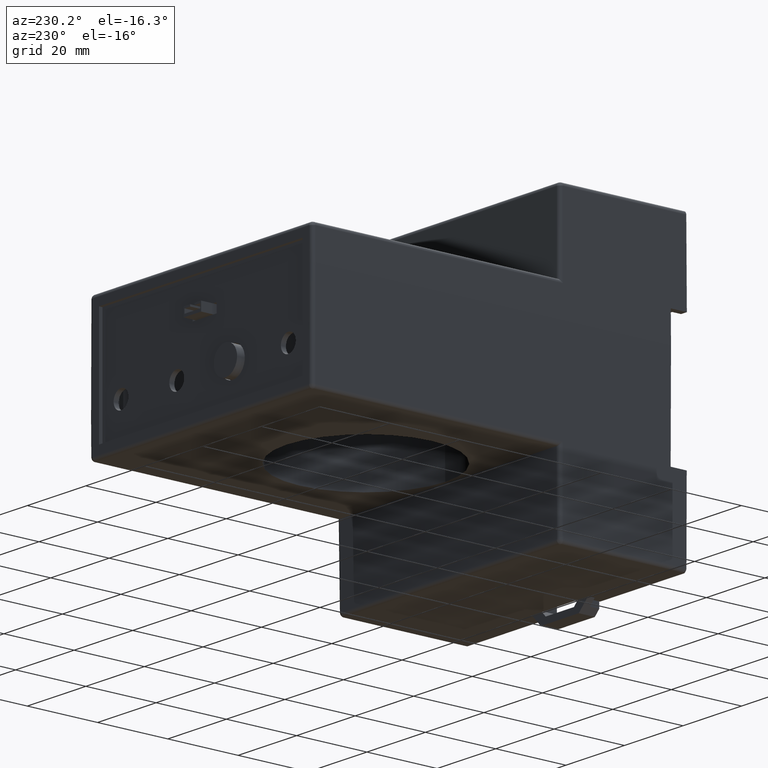
[diagram: clean part render]
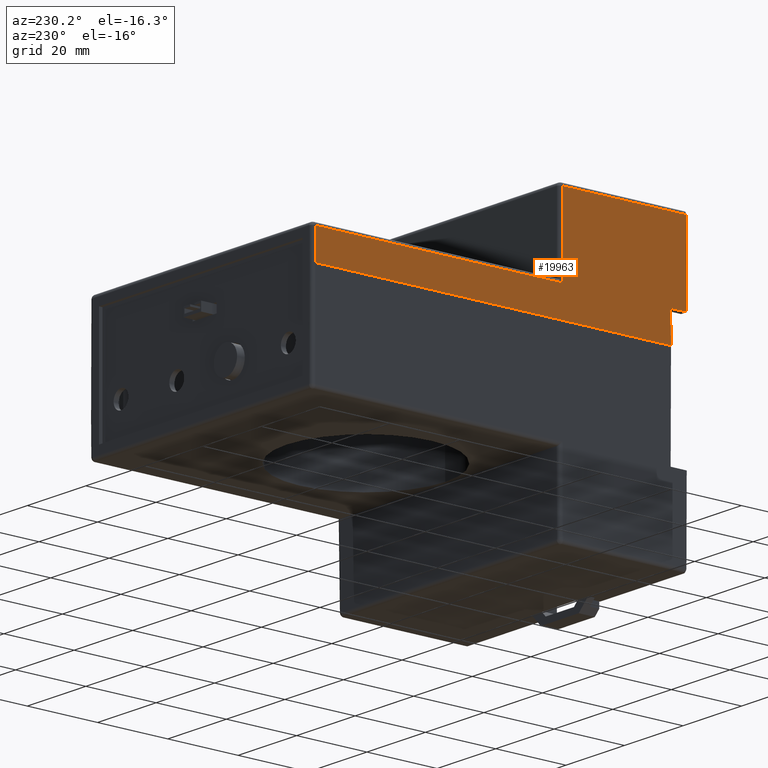
[diagram: same view with one face highlighted and labeled with its STEP entity id]
A machine part, auxiliary view. The second image highlights one B-rep face of the part: STEP entity #19963.
In plain terms, the highlighted planar face has unit normal (1, 0, -0.0087).
Its self-contained STEP definition (entity closure, byte-faithful):
#240 = CARTESIAN_POINT ( 'NONE',  ( -1.495737851716248068, -1.607657660740364092, -0.03899640286111709375 ) ) ;
#415 = ORIENTED_EDGE ( 'NONE', *, *, #27306, .T. ) ;
#868 = B_SPLINE_CURVE_WITH_KNOTS ( 'NONE', 3,
 ( #32019, #18543, #1821, #1662 ),
 .UNSPECIFIED., .F., .F.,
 ( 4, 4 ),
 ( 0.000000000000000000, 1.000000000000000000 ),
 .UNSPECIFIED. ) ;
#1662 = CARTESIAN_POINT ( 'NONE',  ( -1.495745135437334561, 1.164336080886734237, -0.03902644682732960696 ) ) ;
#1821 = CARTESIAN_POINT ( 'NONE',  ( -1.496730293284150859, 1.164348110933815406, -0.1510175401634931969 ) ) ;
#2251 = VERTEX_POINT ( 'NONE', #20005 ) ;
#2555 = VECTOR ( 'NONE', #25016, 39.37007874015748854 ) ;
#3359 = EDGE_CURVE ( 'NONE', #12654, #32877, #11430, .T. ) ;
#4927 = VECTOR ( 'NONE', #7934, 39.37007874015748143 ) ;
#5079 = CARTESIAN_POINT ( 'NONE',  ( -1.488101301464318960, -2.996293787826625810, 0.8359734850000097861 ) ) ;
#7218 = DIRECTION ( 'NONE',  ( 0.000000000000000000, -1.000000000000000000, 0.000000000000000000 ) ) ;
#7296 = CARTESIAN_POINT ( 'NONE',  ( -1.495745806622413410, -2.996293787826625810, -0.04000000066959763512 ) ) ;
#7934 = DIRECTION ( 'NONE',  ( 0.000000000000000000, 1.000000000000000000, 0.000000000000000000 ) ) ;
#8161 = EDGE_CURVE ( 'NONE', #34552, #30690, #34583, .T. ) ;
#8861 = CARTESIAN_POINT ( 'NONE',  ( -1.488101301464318960, -2.816293787826626094, 0.8359734850000097861 ) ) ;
#11201 = CARTESIAN_POINT ( 'NONE',  ( -1.493385304464319052, -2.996293787826625810, 0.2304867425000086956 ) ) ;
#11430 = B_SPLINE_CURVE_WITH_KNOTS ( 'NONE', 3,
 ( #25367, #27845, #20207, #33354 ),
 .UNSPECIFIED., .F., .F.,
 ( 4, 4 ),
 ( 0.000000000000000000, 1.000000000000000000 ),
 .UNSPECIFIED. ) ;
#11434 = CARTESIAN_POINT ( 'NONE',  ( -1.490648173744252958, -1.612767112615052234, 0.5443168675658545119 ) ) ;
#12654 = VERTEX_POINT ( 'NONE', #14778 ) ;
#13249 = CARTESIAN_POINT ( 'NONE',  ( -1.488101301464318960, -0.9034788148266260643, 0.8359734850000097861 ) ) ;
#13435 = EDGE_CURVE ( 'NONE', #2251, #34980, #35122, .T. ) ;
#13570 = ORIENTED_EDGE ( 'NONE', *, *, #17709, .F. ) ;
#14666 = CARTESIAN_POINT ( 'NONE',  ( -1.488101301462563031, -2.996293787826625810, 0.8359734852001161620 ) ) ;
#14778 = CARTESIAN_POINT ( 'NONE',  ( -1.495745135437334561, 1.164336080886734237, -0.03902644682732960696 ) ) ;
#15377 = CARTESIAN_POINT ( 'NONE',  ( -1.495745806540444756, -2.816293787826626094, -0.03999999999999110517 ) ) ;
#16593 = ORIENTED_EDGE ( 'NONE', *, *, #3359, .F. ) ;
#16772 = CARTESIAN_POINT ( 'NONE',  ( -1.493193417991532268, -1.610212386334181955, 0.2526602358920271296 ) ) ;
#17463 = CARTESIAN_POINT ( 'NONE',  ( -1.498677125775287555, 1.164372167010728543, -0.3749999317706247948 ) ) ;
#17626 = ORIENTED_EDGE ( 'NONE', *, *, #26096, .F. ) ;
#17709 = EDGE_CURVE ( 'NONE', #34980, #12654, #868, .T. ) ;
#18543 = CARTESIAN_POINT ( 'NONE',  ( -1.497707621442521786, 1.164360142033058709, -0.2630087018283133182 ) ) ;
#18612 = LINE ( 'NONE', #29606, #32660 ) ;
#18938 = CARTESIAN_POINT ( 'NONE',  ( -1.498669307464318923, -0.9034788148266260643, -0.3749999999999909517 ) ) ;
#19963 = ADVANCED_FACE ( 'NONE', ( #20187 ), #20521, .F. ) ;
#20005 = CARTESIAN_POINT ( 'NONE',  ( -1.498669307464318923, -2.816293787826626094, -0.3749999999999909517 ) ) ;
#20061 = VERTEX_POINT ( 'NONE', #15377 ) ;
#20119 = B_SPLINE_CURVE_WITH_KNOTS ( 'NONE', 3,
 ( #24765, #16772, #11434, #24567 ),
 .UNSPECIFIED., .F., .F.,
 ( 4, 4 ),
 ( 0.000000000000000000, 1.000000000000000000 ),
 .UNSPECIFIED. ) ;
#20187 = FACE_OUTER_BOUND ( 'NONE', #25530, .T. ) ;
#20207 = CARTESIAN_POINT ( 'NONE',  ( -1.495737132394177271, -0.6836597468646617992, -0.03900644539527167026 ) ) ;
#20374 = ORIENTED_EDGE ( 'NONE', *, *, #8161, .F. ) ;
#20521 = PLANE ( 'NONE',  #25943 ) ;
#21957 = ORIENTED_EDGE ( 'NONE', *, *, #28982, .F. ) ;
#22347 = VECTOR ( 'NONE', #23363, 39.37007874015748143 ) ;
#22636 = VERTEX_POINT ( 'NONE', #7296 ) ;
#22869 = LINE ( 'NONE', #8861, #30294 ) ;
#23363 = DIRECTION ( 'NONE',  ( 0.000000000000000000, -1.000000000000000000, 0.000000000000000000 ) ) ;
#24567 = CARTESIAN_POINT ( 'NONE',  ( -1.488102113944586691, -1.615321838998285520, 0.8359734921215729031 ) ) ;
#24765 = CARTESIAN_POINT ( 'NONE',  ( -1.495737851716248068, -1.607657660740364092, -0.03899640286111709375 ) ) ;
#25016 = DIRECTION ( 'NONE',  ( -0.008726535909813266934, 0.000000000000000000, -0.9999619230605806264 ) ) ;
#25367 = CARTESIAN_POINT ( 'NONE',  ( -1.495745135437334561, 1.164336080886734237, -0.03902644682732960696 ) ) ;
#25530 = EDGE_LOOP ( 'NONE', ( #13570, #32320, #35049, #415, #17626, #20374, #21957, #16593 ) ) ;
#25943 = AXIS2_PLACEMENT_3D ( 'NONE', #5079, #29580, #7218 ) ;
#26066 = DIRECTION ( 'NONE',  ( 0.000000000000000000, -1.000000000000000000, 0.000000000000000000 ) ) ;
#26096 = EDGE_CURVE ( 'NONE', #30690, #22636, #32680, .T. ) ;
#27306 = EDGE_CURVE ( 'NONE', #20061, #22636, #18612, .T. ) ;
#27845 = CARTESIAN_POINT ( 'NONE',  ( -1.495737223803821347, 0.2403381670110363855, -0.03901648023428032352 ) ) ;
#28982 = EDGE_CURVE ( 'NONE', #32877, #34552, #20119, .T. ) ;
#29580 = DIRECTION ( 'NONE',  ( 0.9999619230605807374, 0.000000000000000000, -0.008726535909813270403 ) ) ;
#29606 = CARTESIAN_POINT ( 'NONE',  ( -1.495745806464318983, -2.906293787826625952, -0.03999999999999110517 ) ) ;
#29974 = EDGE_CURVE ( 'NONE', #2251, #20061, #22869, .T. ) ;
#30294 = VECTOR ( 'NONE', #30540, 39.37007874015748854 ) ;
#30540 = DIRECTION ( 'NONE',  ( 0.008726535909813266934, 0.000000000000000000, 0.9999619230605806264 ) ) ;
#30690 = VERTEX_POINT ( 'NONE', #14666 ) ;
#32019 = CARTESIAN_POINT ( 'NONE',  ( -1.498677125775287555, 1.164372167010728543, -0.3749999317706247948 ) ) ;
#32320 = ORIENTED_EDGE ( 'NONE', *, *, #13435, .F. ) ;
#32660 = VECTOR ( 'NONE', #26066, 39.37007874015748143 ) ;
#32680 = LINE ( 'NONE', #11201, #2555 ) ;
#32877 = VERTEX_POINT ( 'NONE', #240 ) ;
#33354 = CARTESIAN_POINT ( 'NONE',  ( -1.495737851716248068, -1.607657660740364092, -0.03899640286111709375 ) ) ;
#34010 = CARTESIAN_POINT ( 'NONE',  ( -1.488102113944586691, -1.615321838998285520, 0.8359734921215729031 ) ) ;
#34552 = VERTEX_POINT ( 'NONE', #34010 ) ;
#34583 = LINE ( 'NONE', #13249, #22347 ) ;
#34980 = VERTEX_POINT ( 'NONE', #17463 ) ;
#35049 = ORIENTED_EDGE ( 'NONE', *, *, #29974, .T. ) ;
#35122 = LINE ( 'NONE', #18938, #4927 ) ;